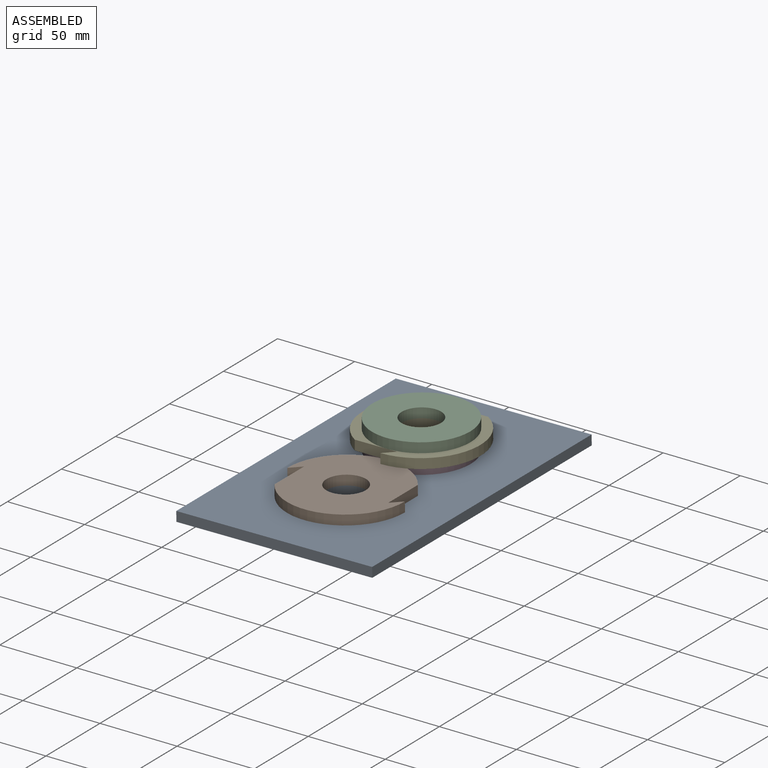
[diagram: assembled view]
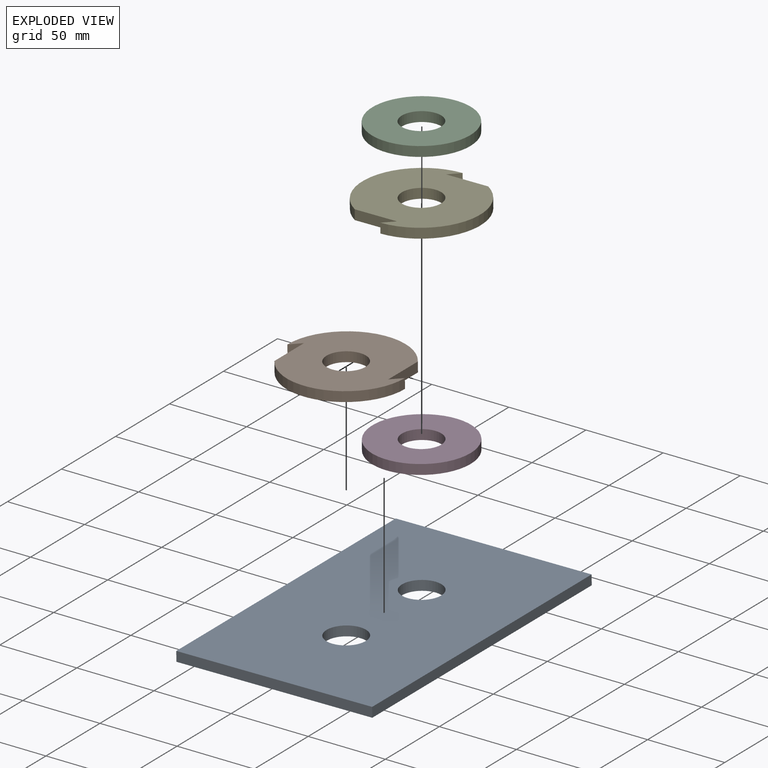
[diagram: exploded view]
GUIDED TOUR — MATED ASSEMBLY (Onshape document 6f2e49aa29784a216beb8269, AutoMate assembly 6f2e49aa29784a216beb8269_0707b83933d6e288e328198b_8685c051f815542286c7cc3e_default)

This assembly has 5 components, labeled P0..P4 below (a component is one placed occurrence of a part; the same part can appear more than once), held together by 4 mates. A mate is a constraint between two components; its type names the relative motion it leaves free:
  FASTENED — locks the two components together rigidly (no relative motion).
Axis/direction vectors are unit vectors and 'through' points are millimeter coordinates, both in the assembly's world frame.

MATES
  1. FASTENED "Fastened 1": P4 <-> P3, direction (0.009, 0.000, -1.000) through (106.74, 116.79, -11.52) mm
  2. FASTENED "Fastened 2": P4 <-> P2, direction (-0.009, 0.000, 1.000) through (106.68, 116.79, -5.17) mm
  3. FASTENED "Fastened 3": P3 <-> P0, direction (0.009, 0.000, -1.000) through (106.80, 116.79, -17.87) mm
  4. FASTENED "Fastened 4": P1 <-> P0, direction (0.009, 0.000, -1.000) through (106.80, 46.94, -17.87) mm

ASSEMBLY ORDER
  1. P3 — the base component [order verified]
  2. P1 [order verified]
  3. P4 [order verified]
  4. P0 [order verified]
  5. P2 [order verified]
Order-tag legend:
  [order verified] — this step's position reverses a verified removal order: the component was checked to insert without passing through the ones already placed.

Of the 5 components, 5 carry the full construction recipe — the FeatureScript program that regenerates the part's solid from scratch; the rest are supplied as boundary geometry only.
Each toured component is shown spotlighted twice — in the assembled view, then in the exploded view, where a leader line traces a displaced component back to its assembled socket (saturated green if recipe-attached, orange if geometry-only; every other component desaturated gray) — followed by its recipe or geometry summary and the mates that hold it.
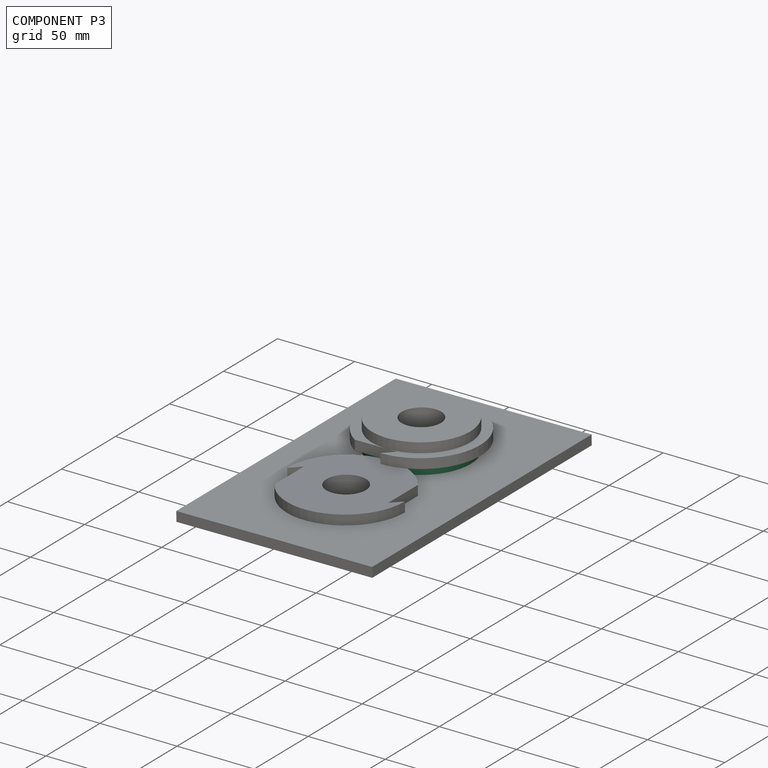
[diagram: component P3 — assembled]
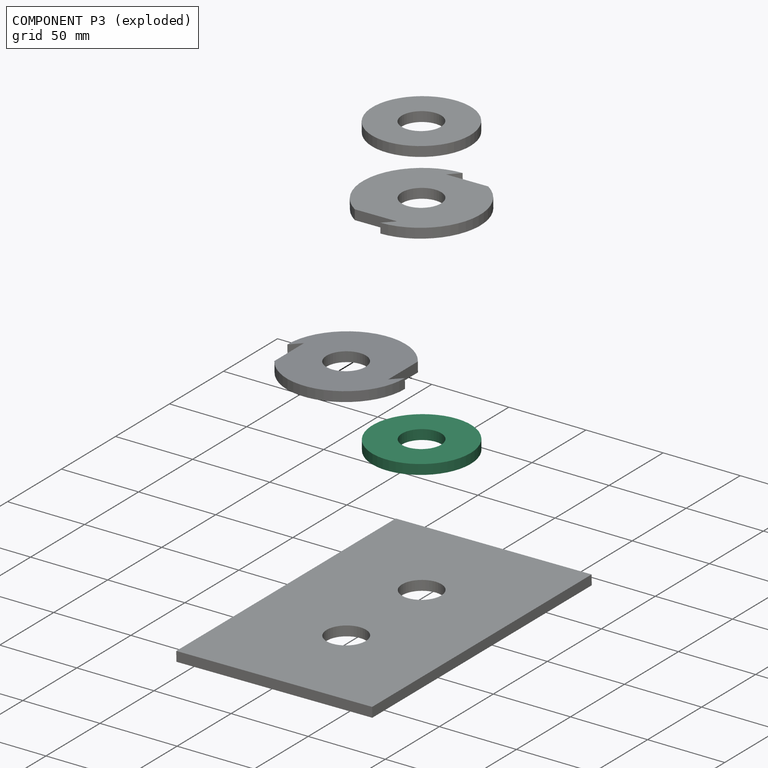
[diagram: component P3 — exploded]
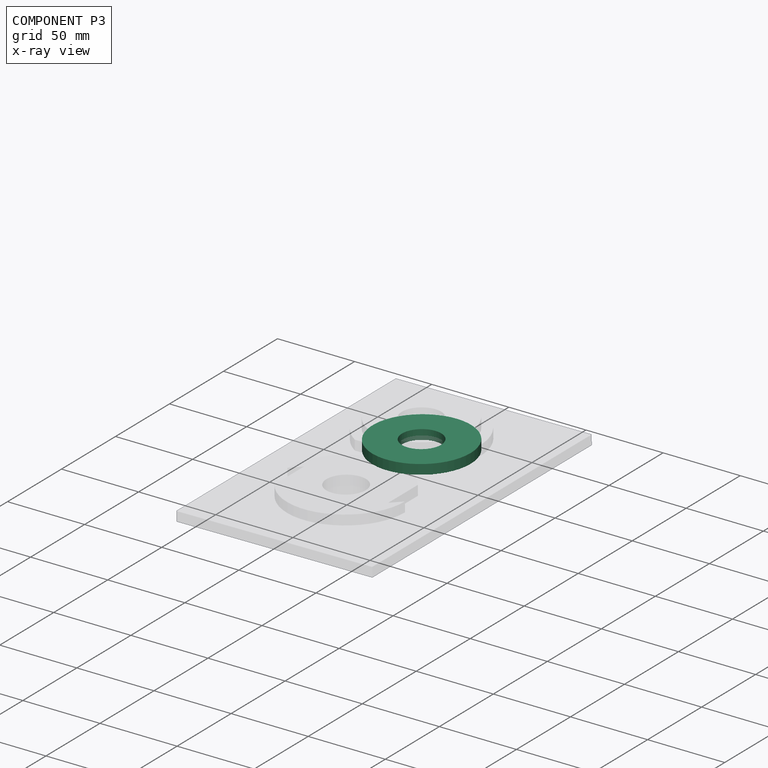
[diagram: component P3 — x-ray view]
COMPONENT P3 — same part as P2 (CADFS 00621782); its construction recipe is shown at P2.
Held by: FASTENED mate "Fastened 1" to P4; FASTENED mate "Fastened 3" to P0.
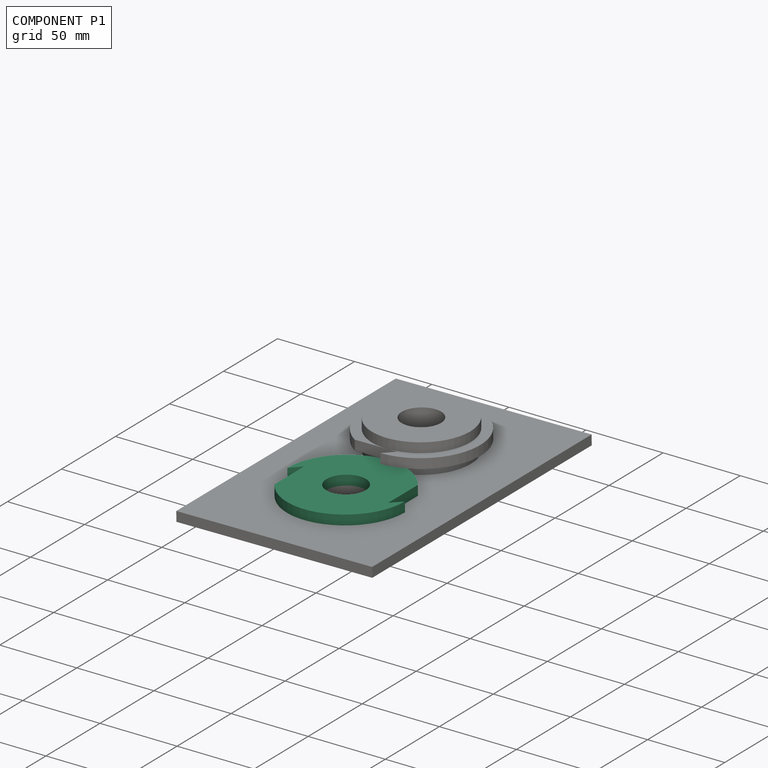
[diagram: component P1 — assembled]
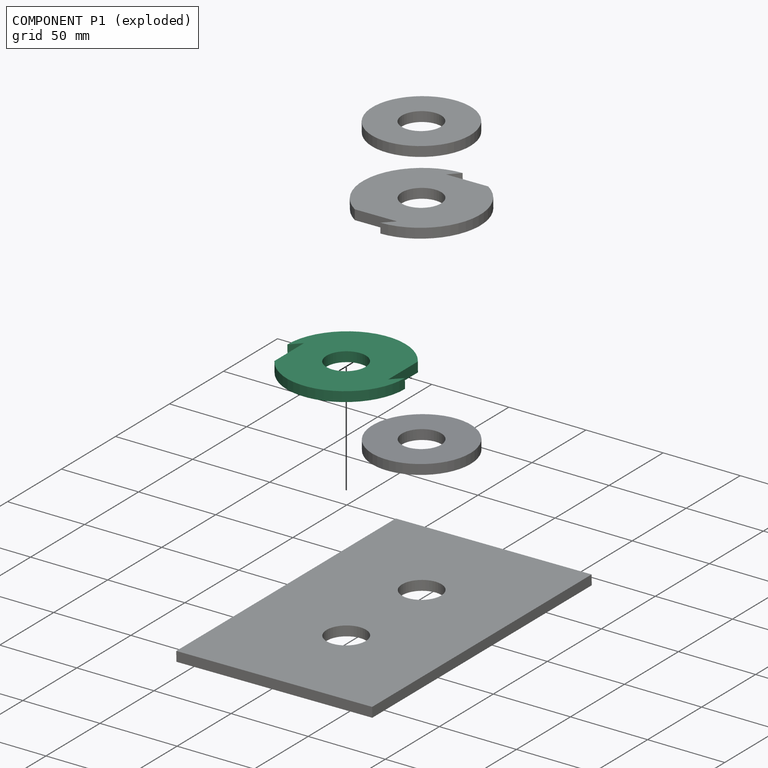
[diagram: component P1 — exploded]
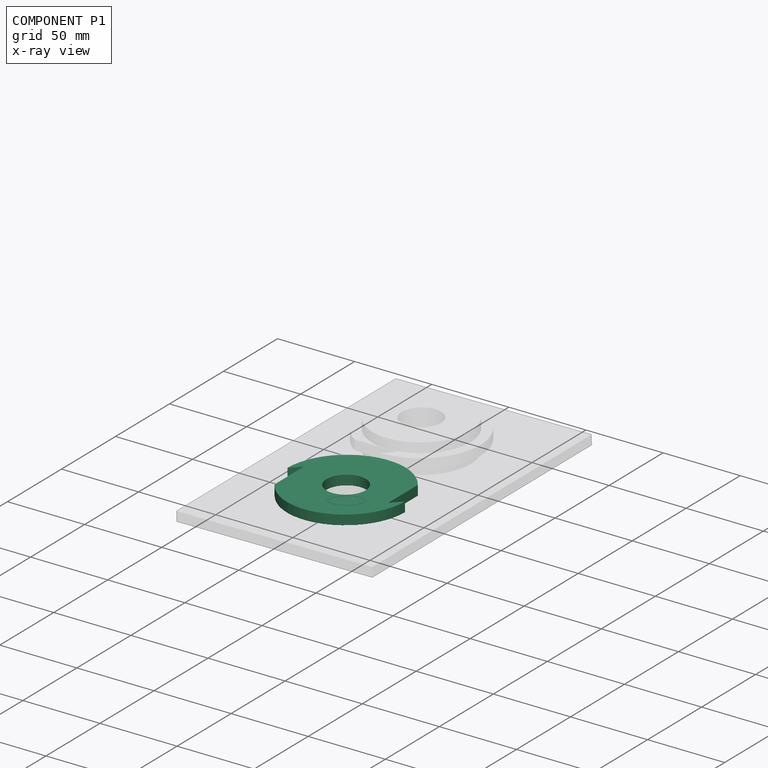
[diagram: component P1 — x-ray view]
COMPONENT P1 — recipe-attached (CADFS 00621781, mesh-verified: the recipe's output STEP matches this component's geometry to below the mesh-comparison resolution (tessellation chordal tolerance ~0.162 mm)).
Held by: FASTENED mate "Fastened 4" to P0.
Construction recipe (FeatureScript — the CAD program that rebuilds this solid; sketch coordinates are in the units given by the * unit suffixes, e.g. mm):

FeatureScript 1511;
import(path : "onshape/std/geometry.fs", version : "1511.0");
import(path : "onshape/std/common.fs", version : "1511.0");
const mm = millimeter;
const VERTEX = EntityType.VERTEX;
const EDGE = EntityType.EDGE;
const FACE = EntityType.FACE;
const BODY = EntityType.BODY;
function v(x, y){return vector(x, y);}
function OD(order){return orderDisambiguation(order);}
function OSD(set){return originalSetDisambiguation(set);}
function TD(topology){return topologyDisambiguation(topology);}
function TDD(query){return trueDependencyDisambiguation(query);}
function sQuery(a, b, c) {return sketchEntityQuery(a, b, c);}

annotation { "Feature Type Name" : "Feature", "Feature Type Description" : "" }
export const myFeature = defineFeature(function(context is Context, id is Id, definition is map)
    precondition{}
    {
        {
            var Q0;
            Q0=qCreatedBy(makeId("Top.planeOp"),FACE);
            var sketch = newSketch(context, id + "F0", { "sketchPlane" : qUnion([Q0])});
            skCircle(sketch, "E0", {"center": v(0, 0) * mm, "radius": 38.1 * mm});
            skLineSegment(sketch, "E1", {"start": v(0, 0) * mm, "end": v(0, 0) * mm});
            skLineSegment(sketch, "E2", {"start": v(0, -38.1) * mm, "end": v(0, 38.1) * mm, "construction": true});
            skLineSegment(sketch, "E3", {"start": v(0, 38.1) * mm, "end": v(0, 38.1) * mm});
            skLineSegment(sketch, "E4", {"start": v(38.1, 0) * mm, "end": v(-38.1, 0) * mm, "construction": true});
            skLineSegment(sketch, "E5", {"start": v(0, 31.75) * mm, "end": v(0, 31.75) * mm});
            skLineSegment(sketch, "E6", {"start": v(0, 31.75) * mm, "end": v(0, 38.1) * mm});
            skLineSegment(sketch, "E7", {"start": v(0, 31.75) * mm, "end": v(21.06, 31.75) * mm});
            skLineSegment(sketch, "E8", {"start": v(31.75, 0) * mm, "end": v(31.75, 6.35) * mm});
            skLineSegment(sketch, "E9", {"start": v(31.75, 6.35) * mm, "end": v(38.1, 0) * mm});
            skLineSegment(sketch, "E10", {"start": v(31.75, 6.35) * mm, "end": v(31.75, -21.06) * mm});
            skLineSegment(sketch, "E11", {"start": v(31.75, -21.06) * mm, "end": v(31.75, -21.06) * mm});
            skLineSegment(sketch, "E12", {"start": v(0, -31.75) * mm, "end": v(6.35, -31.75) * mm});
            skLineSegment(sketch, "E13", {"start": v(6.35, -31.75) * mm, "end": v(0, -38.1) * mm});
            skLineSegment(sketch, "E14", {"start": v(0, -31.75) * mm, "end": v(-21.06, -31.75) * mm});
            skCircle(sketch, "E15", {"center": v(0, 0) * mm, "radius": 12.7 * mm});
            skLineSegment(sketch, "E16", {"start": v(-38.1, 0) * mm, "end": v(-31.75, -6.35) * mm});
            skLineSegment(sketch, "E17", {"start": v(-31.75, -6.35) * mm, "end": v(-31.75, 0) * mm});
            skLineSegment(sketch, "E18", {"start": v(-31.75, 0) * mm, "end": v(-31.75, 21.06) * mm});
            skLineSegment(sketch, "E19", {"start": v(0, 31.75) * mm, "end": v(-6.35, 31.75) * mm});
            skLineSegment(sketch, "E20", {"start": v(-6.35, 31.75) * mm, "end": v(0, 38.1) * mm});
            skLineSegment(sketch, "E21", {"start": v(0, -38.1) * mm, "end": v(-38.1, 0) * mm, "construction": true});
            skLineSegment(sketch, "E22", {"start": v(-41.8, -3.7) * mm, "end": v(0, 38.1) * mm, "construction": true});
            skLineSegment(sketch, "E23", {"start": v(0, 38.1) * mm, "end": v(38.1, 0) * mm, "construction": true});
            skLineSegment(sketch, "E24", {"start": v(38.1, 0) * mm, "end": v(0, -38.1) * mm, "construction": true});
            skLineSegment(sketch, "E25", {"start": v(-20.9, 17.2) * mm, "end": v(-20.9, 17.2) * mm});
            skLineSegment(sketch, "E26", {"start": v(0, 0) * mm, "end": v(26.94, 26.94) * mm, "construction": true});
            skLineSegment(sketch, "E27", {"start": v(0, 0) * mm, "end": v(26.65, -27.23) * mm, "construction": true});
            skLineSegment(sketch, "E28", {"start": v(0, 0) * mm, "end": v(-26.94, -26.94) * mm, "construction": true});
            skLineSegment(sketch, "E29", {"start": v(0, 0) * mm, "end": v(-26.94, 26.94) * mm, "construction": true});
            skLineSegment(sketch, "E30", {"start": v(-26.94, 26.94) * mm, "end": v(-26.94, 26.94) * mm});
            skLineSegment(sketch, "E31", {"start": v(-26.94, -26.94) * mm, "end": v(-22.45, -22.45) * mm, "construction": true});
            skLineSegment(sketch, "E32", {"start": v(-22.45, -22.45) * mm, "end": v(-37.34, -7.56) * mm});
            skLineSegment(sketch, "E33", {"start": v(-22.45, -22.45) * mm, "end": v(-17.96, -26.94) * mm});
            skLineSegment(sketch, "E34", {"start": v(-17.96, -26.94) * mm, "end": v(-26.94, -26.94) * mm});
            skLineSegment(sketch, "E35", {"start": v(-26.94, 26.94) * mm, "end": v(-22.45, 22.45) * mm, "construction": true});
            skLineSegment(sketch, "E36", {"start": v(-22.45, 22.45) * mm, "end": v(-26.94, 17.96) * mm});
            skLineSegment(sketch, "E37", {"start": v(-26.94, 17.96) * mm, "end": v(-26.94, 26.94) * mm});
            skLineSegment(sketch, "E38", {"start": v(-22.45, 22.45) * mm, "end": v(-7.56, 37.34) * mm});
            skLineSegment(sketch, "E39", {"start": v(22.45, 22.45) * mm, "end": v(17.96, 26.94) * mm});
            skLineSegment(sketch, "E40", {"start": v(17.96, 26.94) * mm, "end": v(26.94, 26.94) * mm});
            skLineSegment(sketch, "E41", {"start": v(22.45, 22.45) * mm, "end": v(37.34, 7.56) * mm});
            skLineSegment(sketch, "E42", {"start": v(26.65, -27.23) * mm, "end": v(22.2, -22.69) * mm, "construction": true});
            skLineSegment(sketch, "E43", {"start": v(22.2, -22.69) * mm, "end": v(26.75, -18.25) * mm});
            skLineSegment(sketch, "E44", {"start": v(26.75, -18.25) * mm, "end": v(26.65, -27.23) * mm});
            skLineSegment(sketch, "E45", {"start": v(22.2, -22.69) * mm, "end": v(7.16, -37.42) * mm});
            skSolve(sketch);
        }
        {
            var Q0;
            Q0=makeQuery(id+"F0.imprint","IMPRINT",FACE,{"disambiguationData":[TD([[makeQuery(id+"F0.imprint","IMPRINT",EDGE,{"derivedFrom":sQuery(id+"F0.wireOp",EDGE,"E39")}),-1.0]])]});
            var Q1;
            {var subQ0=sQuery(id+"F0.wireOp",EDGE,"E32");Q1=makeQuery(id+"F0.imprint","IMPRINT",FACE,{"disambiguationData":[TD([[makeQuery(id+"F0.imprint","IMPRINT",EDGE,{"derivedFrom":subQ0}),1.0]])]});}
            var Q2;
            Q2=makeQuery(id+"F0.imprint","IMPRINT",FACE,{"disambiguationData":[TD([[makeQuery(id+"F0.imprint","IMPRINT",EDGE,{"derivedFrom":sQuery(id+"F0.wireOp",EDGE,"E43")}),-1.0]])]});
            var Q3;
            Q3=makeQuery(id+"F0.imprint","IMPRINT",FACE,{"disambiguationData":[TD([[makeQuery(id+"F0.imprint","IMPRINT",EDGE,{"derivedFrom":sQuery(id+"F0.wireOp",EDGE,"E36")}),-1.0]])]});
            var Q4;
            {var subQ10=sQuery(id+"F0.wireOp",EDGE,"E7");Q4=makeQuery(id+"F0.imprint","IMPRINT",FACE,{"disambiguationData":[TD([[makeQuery(id+"F0.imprint","IMPRINT",EDGE,{"derivedFrom":subQ10}),-1.0]])]});}
            var Q5;
            {var subQ0=sQuery(id+"F0.wireOp",EDGE,"E9");Q5=makeQuery(id+"F0.imprint","IMPRINT",FACE,{"disambiguationData":[TD([[makeQuery(id+"F0.imprint","IMPRINT",EDGE,{"derivedFrom":subQ0}),-1.0]])]});}
            var Q6;
            {var subQ0=sQuery(id+"F0.wireOp",EDGE,"E16");Q6=makeQuery(id+"F0.imprint","IMPRINT",FACE,{"disambiguationData":[TD([[makeQuery(id+"F0.imprint","IMPRINT",EDGE,{"derivedFrom":subQ0}),1.0]])]});}
            extrude(context, id + "F1", {"entities" : qUnion([Q0, Q1, Q2, Q3, Q4, Q5, Q6]), "oppositeDirection" : true, "depth" : 6.35 * mm, "offsetDistance" : 25.4 * mm});
        }
    });
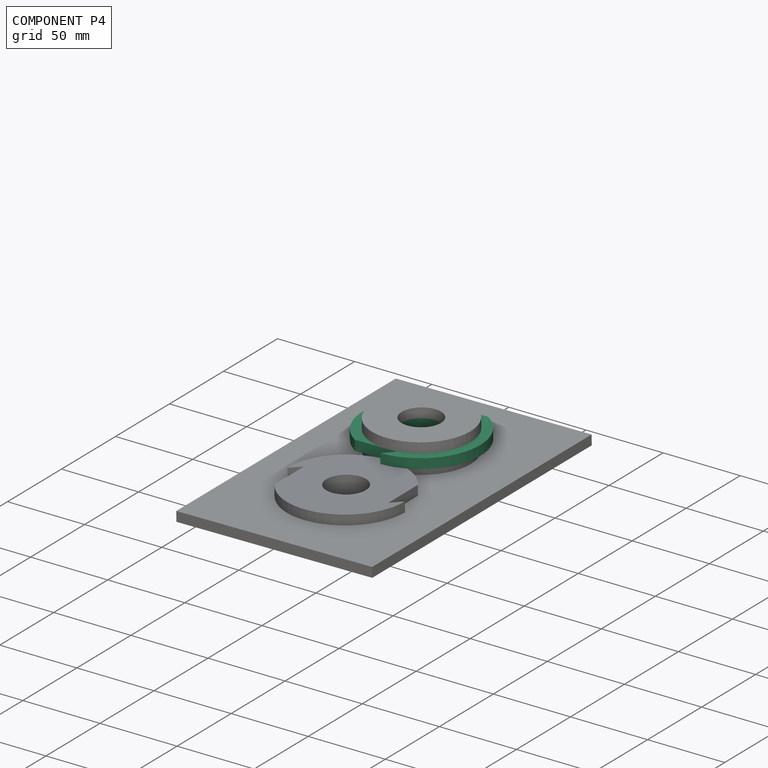
[diagram: component P4 — assembled]
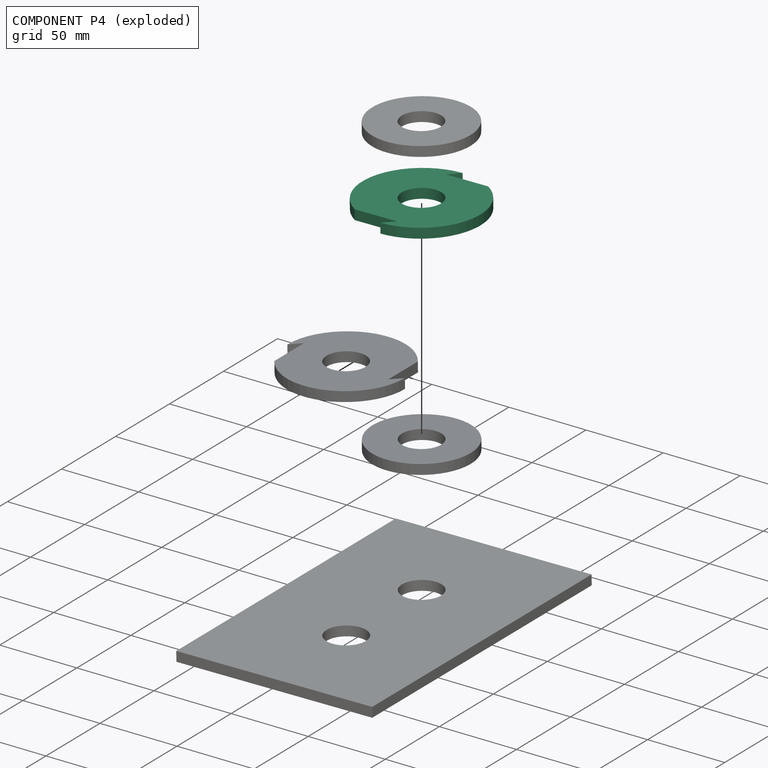
[diagram: component P4 — exploded]
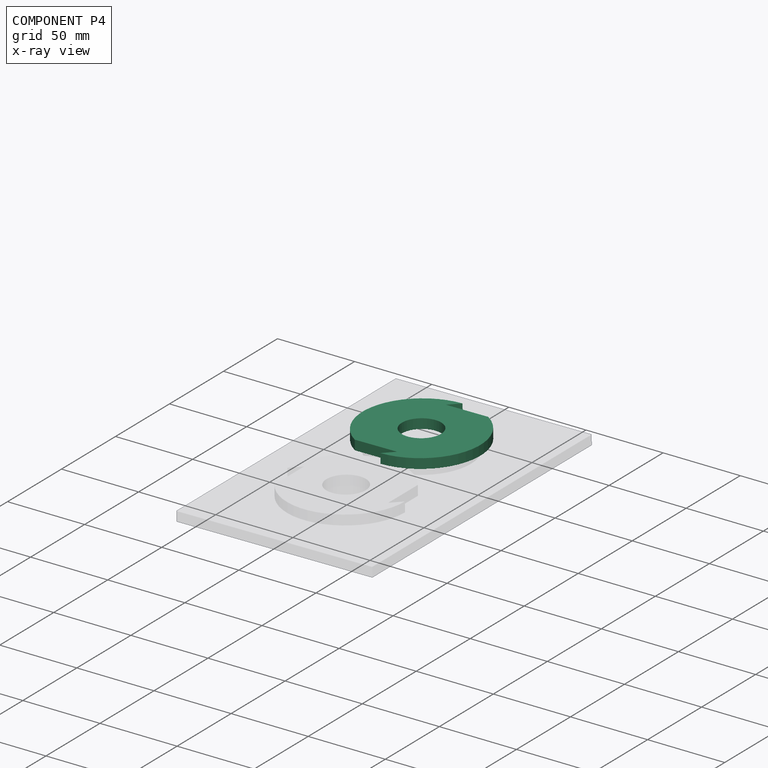
[diagram: component P4 — x-ray view]
COMPONENT P4 — same part as P1 (CADFS 00621781); its construction recipe is shown at P1.
Held by: FASTENED mate "Fastened 1" to P3; FASTENED mate "Fastened 2" to P2.
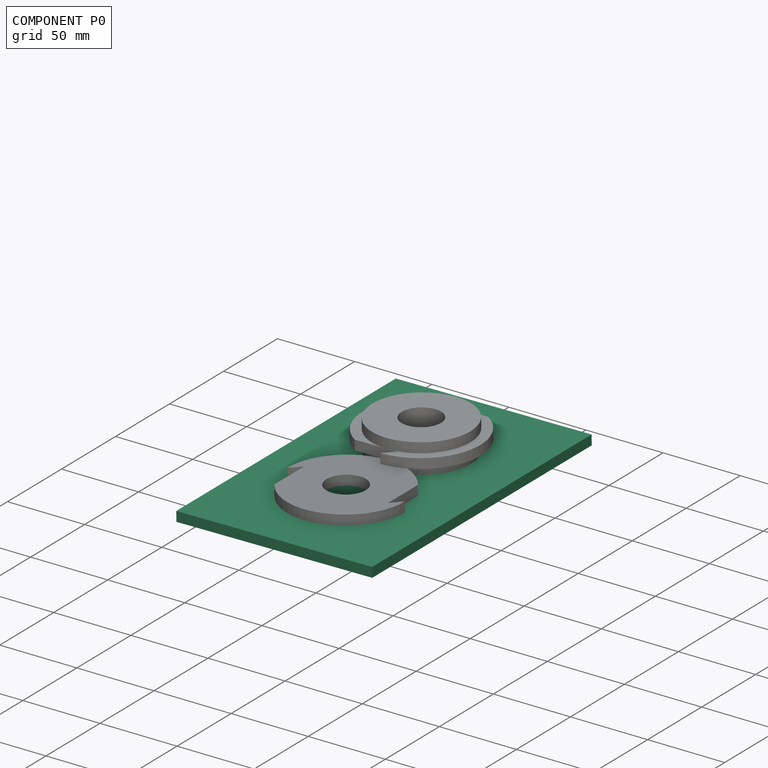
[diagram: component P0 — assembled]
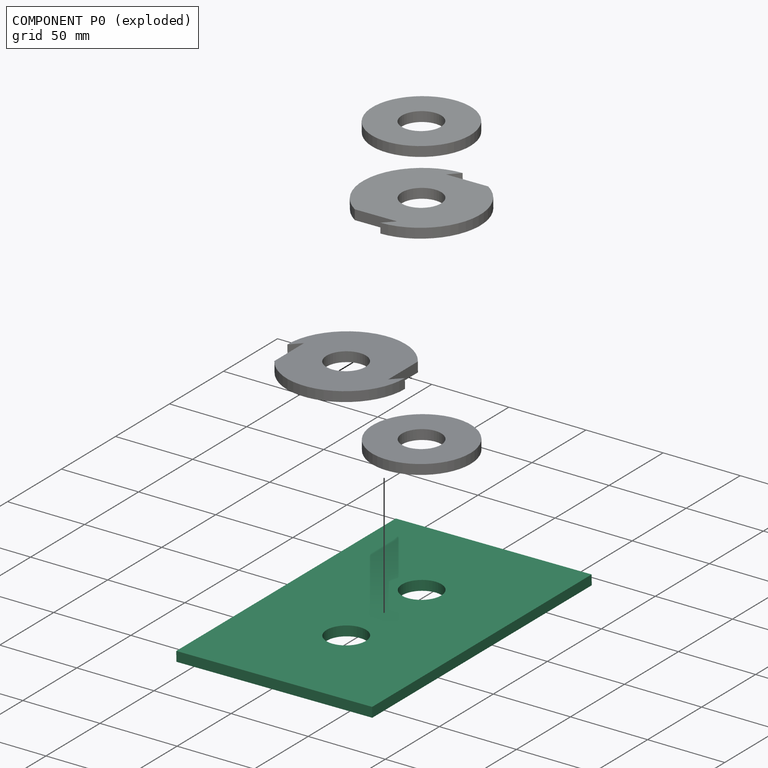
[diagram: component P0 — exploded]
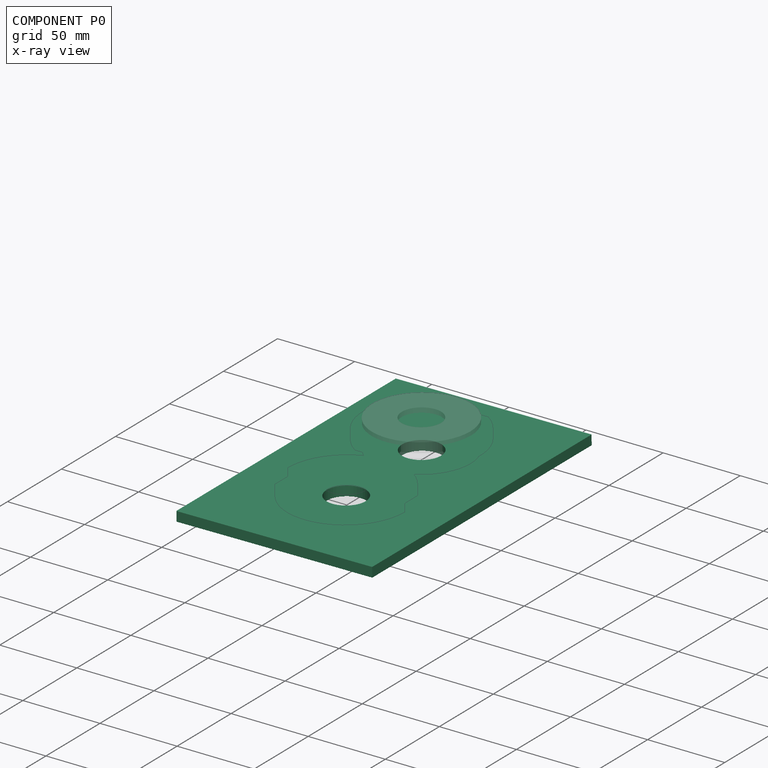
[diagram: component P0 — x-ray view]
COMPONENT P0 — recipe-attached (CADFS 00621783, mesh-verified: the recipe's output STEP matches this component's geometry to below the mesh-comparison resolution (tessellation chordal tolerance ~0.36 mm)).
Held by: FASTENED mate "Fastened 3" to P3; FASTENED mate "Fastened 4" to P1.
Construction recipe (FeatureScript — the CAD program that rebuilds this solid; sketch coordinates are in the units given by the * unit suffixes, e.g. mm):

FeatureScript 1511;
import(path : "onshape/std/geometry.fs", version : "1511.0");
import(path : "onshape/std/common.fs", version : "1511.0");
const mm = millimeter;
const VERTEX = EntityType.VERTEX;
const EDGE = EntityType.EDGE;
const FACE = EntityType.FACE;
const BODY = EntityType.BODY;
function v(x, y){return vector(x, y);}
function OD(order){return orderDisambiguation(order);}
function OSD(set){return originalSetDisambiguation(set);}
function TD(topology){return topologyDisambiguation(topology);}
function TDD(query){return trueDependencyDisambiguation(query);}
function sQuery(a, b, c) {return sketchEntityQuery(a, b, c);}

annotation { "Feature Type Name" : "Feature", "Feature Type Description" : "" }
export const myFeature = defineFeature(function(context is Context, id is Id, definition is map)
    precondition{}
    {
        {
            var Q0;
            Q0=qCreatedBy(makeId("Right.planeOp"),FACE);
            var sketch = newSketch(context, id + "F0", { "sketchPlane" : qUnion([Q0])});
            skLineSegment(sketch, "E0.bottom", {"start": v(101.6, -63.5) * mm, "end": v(-101.6, -63.5) * mm});
            skLineSegment(sketch, "E0.top", {"start": v(101.6, 63.5) * mm, "end": v(-101.6, 63.5) * mm});
            skLineSegment(sketch, "E0.left", {"start": v(101.6, -63.5) * mm, "end": v(101.6, 63.5) * mm});
            skLineSegment(sketch, "E0.right", {"start": v(-101.6, -63.5) * mm, "end": v(-101.6, 63.5) * mm});
            skPoint(sketch, "E0.middle", {"position": v(0, 0) * mm});
            skLineSegment(sketch, "E1", {"start": v(0, 0) * mm, "end": v(-34.93, 0) * mm, "construction": true});
            skLineSegment(sketch, "E2", {"start": v(-34.93, 0) * mm, "end": v(0, 0) * mm, "construction": true});
            skLineSegment(sketch, "E3", {"start": v(0, 0) * mm, "end": v(34.93, 0) * mm, "construction": true});
            skCircle(sketch, "E4", {"center": v(-34.93, 0) * mm, "radius": 12.7 * mm});
            skCircle(sketch, "E5", {"center": v(34.93, 0) * mm, "radius": 12.7 * mm});
            skSolve(sketch);
        }
        {
            var Q0;
            Q0=makeQuery(id+"F0.imprint","IMPRINT",FACE,{"disambiguationData":[TD([[makeQuery(id+"F0.imprint","IMPRINT",EDGE,{"derivedFrom":sQuery(id+"F0.wireOp",EDGE,"E0.bottom")}),-1.0]])]});
            extrude(context, id + "F1", {"entities" : qUnion([Q0]), "depth" : 6.35 * mm, "offsetDistance" : 25.4 * mm});
        }
    });
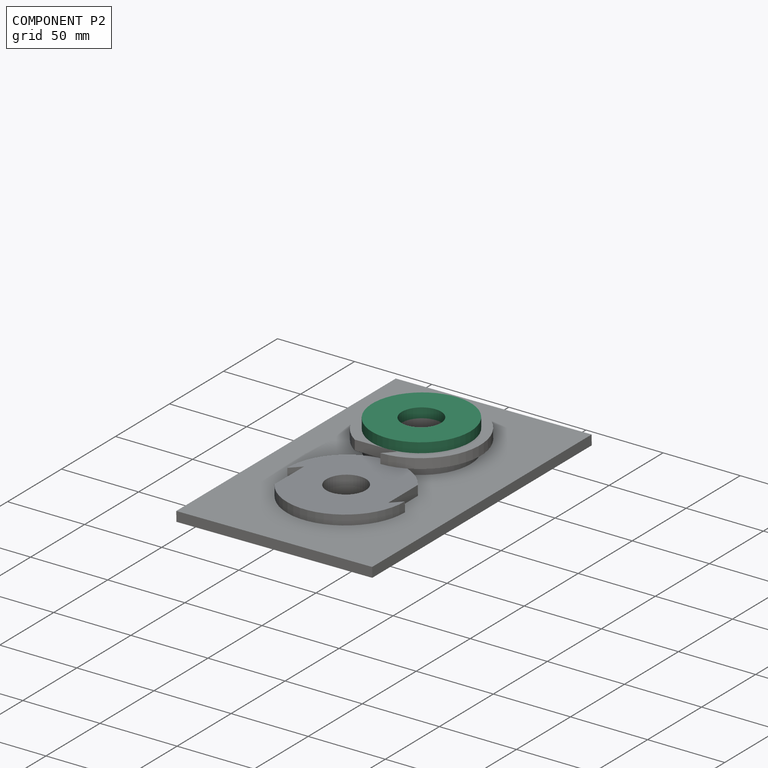
[diagram: component P2 — assembled]
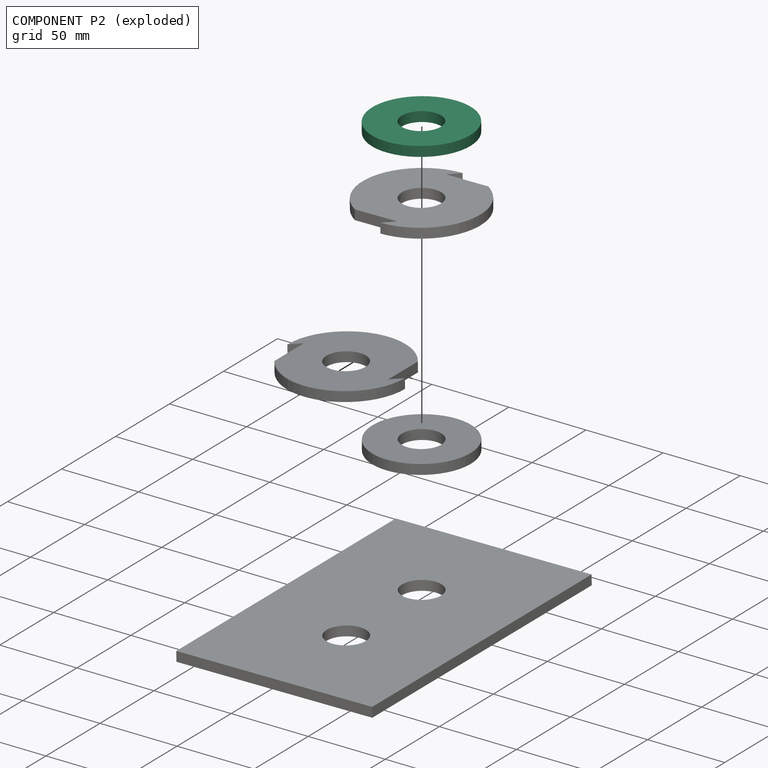
[diagram: component P2 — exploded]
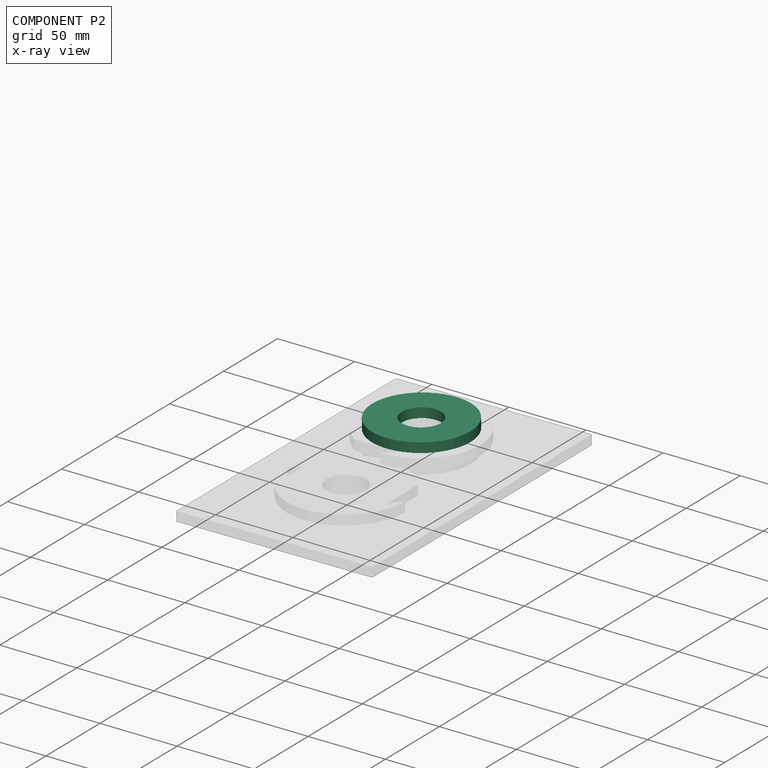
[diagram: component P2 — x-ray view]
COMPONENT P2 — recipe-attached (CADFS 00621782, mesh-verified: the recipe's output STEP matches this component's geometry to below the mesh-comparison resolution (tessellation chordal tolerance ~0.135 mm)).
Held by: FASTENED mate "Fastened 2" to P4.
Construction recipe (FeatureScript — the CAD program that rebuilds this solid; sketch coordinates are in the units given by the * unit suffixes, e.g. mm):

FeatureScript 1511;
import(path : "onshape/std/geometry.fs", version : "1511.0");
import(path : "onshape/std/common.fs", version : "1511.0");
const mm = millimeter;
const VERTEX = EntityType.VERTEX;
const EDGE = EntityType.EDGE;
const FACE = EntityType.FACE;
const BODY = EntityType.BODY;
function v(x, y){return vector(x, y);}
function OD(order){return orderDisambiguation(order);}
function OSD(set){return originalSetDisambiguation(set);}
function TD(topology){return topologyDisambiguation(topology);}
function TDD(query){return trueDependencyDisambiguation(query);}
function sQuery(a, b, c) {return sketchEntityQuery(a, b, c);}

annotation { "Feature Type Name" : "Feature", "Feature Type Description" : "" }
export const myFeature = defineFeature(function(context is Context, id is Id, definition is map)
    precondition{}
    {
        {
            var Q0;
            Q0=qCreatedBy(makeId("Top.planeOp"),FACE);
            var sketch = newSketch(context, id + "F0", { "sketchPlane" : qUnion([Q0])});
            skCircle(sketch, "E0", {"center": v(0, 0) * mm, "radius": 31.75 * mm});
            skCircle(sketch, "E1", {"center": v(0, 0) * mm, "radius": 12.7 * mm});
            skSolve(sketch);
        }
        {
            var Q0;
            Q0 = qSketchRegion(id + "F0", true);
            extrude(context, id + "F1", {"entities" : qUnion([Q0]), "depth" : 6.35 * mm, "offsetDistance" : 25.4 * mm});
        }
    });
PROVENANCE & LICENSES
Assembly (occurrences, transforms, mates, per-part STEP geometry): AutoMate dataset, Zenodo record 7776208, CC0.
Construction recipes: CADFS (HuggingFace VladPyatov/CADFS, CC-BY-4.0, layered over the ABC dataset), FeatureScript reconstruction programs keyed by ABC model id.
Join: ABC meta listings map ABC model id -> Onshape documentId; within a shared document, parts are matched by geometric signature (bounding-box dims + volume at 0.1% relative tolerance, exact B-rep face/solid counts).
Verification: 5 of this assembly's 5 components carry a recipe attachment, and every attachment is mesh-verified: the CADFS STEP and the AutoMate member STEP were compared as meshes in their shared local frame (symmetric sampled-point-to-mesh distance); worst across the 5 attachments: below the mesh-comparison resolution (tessellation chordal tolerance ~0.36 mm) on a 240 mm part.
Renders: orthographic iso camera (az 35 / el 25); the floor grid conveys scale (grid pitch printed in each image; no ruler). In the exploded view each component is displaced by its stored offset vector: the offsets alone carry the explosion direction (mate normal/axis signs are not orientation cues and do not encode it), and separation distances are assigned per mate-chain, not proportionally to assembly-order depth.
